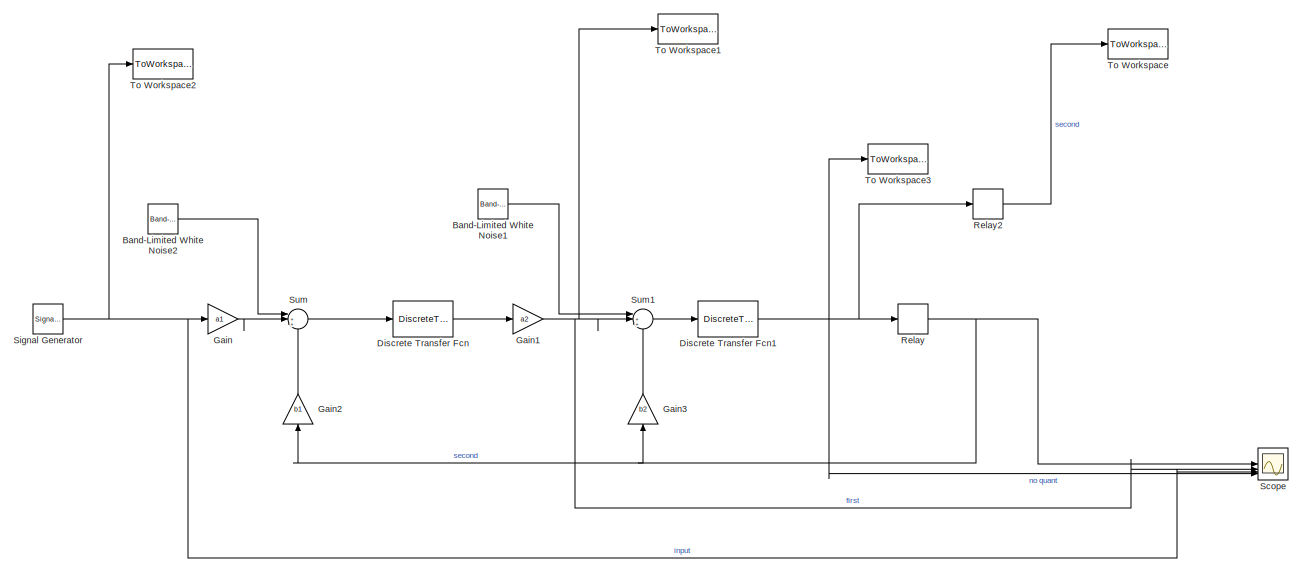
[diagram: root canvas - part 1/2, top center region]
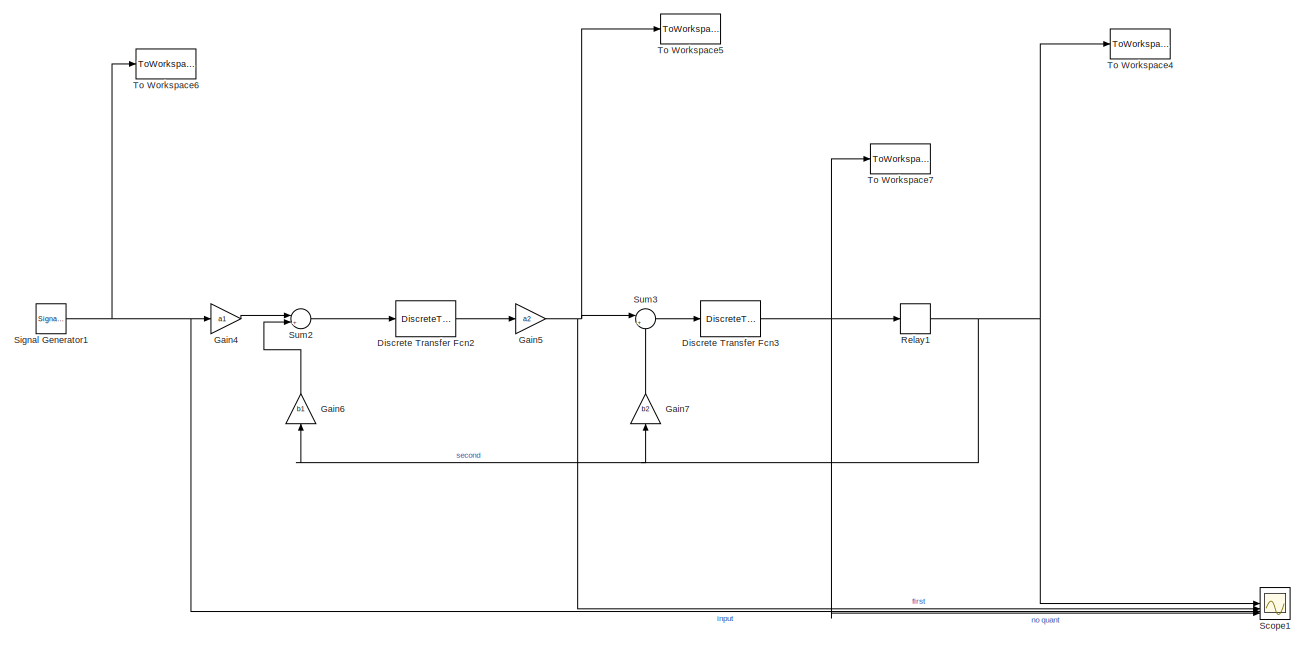
[diagram: root canvas - part 2/2, bottom center region]
MODEL slx_66622a0cb6f7
KIND model
CONFIG AbsTol = auto
CONFIG EnableMultiTasking = off
CONFIG FixedStep = 1/Fs
CONFIG MaxStep = 1/Fs
CONFIG MinStep = auto
CONFIG RelTol = 1e-3
CONFIG SampleTimeConstraint = Unconstrained
CONFIG SolverName = FixedStepAuto
CONFIG StartTime = 0.0
CONFIG StopTime = 1
BLOCK [Reference] Band-Limited White Noise1  REF=simulink/Sources/Band-Limited
White Noise
  SourceBlock = simulink/Sources/Band-Limited\nWhite Noise
  SourceType = Band-Limited White Noise.
BLOCK [Reference] Band-Limited White Noise2  REF=simulink/Sources/Band-Limited
White Noise
  SourceBlock = simulink/Sources/Band-Limited\nWhite Noise
  SourceType = Band-Limited White Noise.
BLOCK [DiscreteTransferFcn] Discrete Transfer Fcn
  Denominator = [1 -1]
  InputPortMap = u0
  Numerator = [1 0]
BLOCK [DiscreteTransferFcn] Discrete Transfer Fcn1
  Denominator = [1 -1]
  InputPortMap = u0
BLOCK [DiscreteTransferFcn] Discrete Transfer Fcn2
  Denominator = [1 -1]
  InputPortMap = u0
  Numerator = [1 0]
BLOCK [DiscreteTransferFcn] Discrete Transfer Fcn3
  Denominator = [1 -1]
  InputPortMap = u0
BLOCK [Gain] Gain
  Gain = a1
BLOCK [Gain] Gain1
  Gain = a2
BLOCK [Gain] Gain2
  Gain = b1
  NameLocation = right
BLOCK [Gain] Gain3
  Gain = b2
  NameLocation = right
BLOCK [Gain] Gain4
  Gain = a1
BLOCK [Gain] Gain5
  Gain = a2
BLOCK [Gain] Gain6
  Gain = b1
  NameLocation = right
BLOCK [Gain] Gain7
  Gain = b2
  NameLocation = right
BLOCK [Relay] Relay
  OffOutputValue = -1
  OffSwitchValue = 0
  OnSwitchValue = 0
BLOCK [Relay] Relay1
  OffOutputValue = -1
  OffSwitchValue = 0
  OnSwitchValue = 0
BLOCK [Relay] Relay2
  OffOutputValue = -1
  OffSwitchValue = 0
  OnSwitchValue = 0
BLOCK [Scope] Scope
  Floating = off
  NumInputPorts = 4
  ScopeSpecificationString = Simulink.scopes.TimeScopeBlockCfg('CurrentConfiguration', extmgr.ConfigurationSet(extmgr.Configuration('Core','General UI',true),extmgr.Configuration('Core','Source UI',true),extmgr.Configuration('Sources','WiredSimulink',true),extmgr.Configuration('Visuals','Time Domain',true,'SerializedDisplays',{struct('MinYLimReal','-1.25','MaxYLimReal','1.25','YLabelReal','','MinYLimMag','0.00000','MaxYLimMag...<+3391ch>
BLOCK [Scope] Scope1
  Floating = off
  NumInputPorts = 4
  ScopeSpecificationString = Simulink.scopes.TimeScopeBlockCfg('CurrentConfiguration', extmgr.ConfigurationSet(extmgr.Configuration('Core','General UI',true),extmgr.Configuration('Core','Source UI',true),extmgr.Configuration('Sources','WiredSimulink',true,'DataLoggingVariableName','ScopeData1'),extmgr.Configuration('Visuals','Time Domain',true,'SerializedDisplays',{struct('MinYLimReal','-1.25','MaxYLimReal','1.25','YLabelReal...<+3430ch>
BLOCK [SignalGenerator] Signal Generator
  Amplitude = AAA
  Frequency = f
BLOCK [SignalGenerator] Signal Generator1
  Amplitude = AAA
  Frequency = f
BLOCK [Sum] Sum
  Inputs = |++-
BLOCK [Sum] Sum1
  Inputs = |++-
BLOCK [Sum] Sum2
  Inputs = |+-
BLOCK [Sum] Sum3
  Inputs = |+-
BLOCK [ToWorkspace] To Workspace
  FixptAsFi = on
  MaxDataPoints = inf
  SampleTime = -1
  SaveFormat = Timeseries
  VariableName = second
BLOCK [ToWorkspace] To Workspace1
  FixptAsFi = on
  MaxDataPoints = inf
  SampleTime = -1
  SaveFormat = Timeseries
  VariableName = first
BLOCK [ToWorkspace] To Workspace2
  FixptAsFi = on
  MaxDataPoints = inf
  SampleTime = -1
  SaveFormat = Timeseries
  VariableName = source
BLOCK [ToWorkspace] To Workspace3
  FixptAsFi = on
  MaxDataPoints = inf
  SampleTime = -1
  SaveFormat = Timeseries
  VariableName = out_sec
BLOCK [ToWorkspace] To Workspace4
  FixptAsFi = on
  MaxDataPoints = inf
  SampleTime = -1
  SaveFormat = Timeseries
  VariableName = second1
BLOCK [ToWorkspace] To Workspace5
  FixptAsFi = on
  MaxDataPoints = inf
  SampleTime = -1
  SaveFormat = Timeseries
  VariableName = first1
BLOCK [ToWorkspace] To Workspace6
  FixptAsFi = on
  MaxDataPoints = inf
  SampleTime = -1
  SaveFormat = Timeseries
  VariableName = source1
BLOCK [ToWorkspace] To Workspace7
  FixptAsFi = on
  MaxDataPoints = inf
  SampleTime = -1
  SaveFormat = Timeseries
  VariableName = out_sec1
LINE Band-Limited White Noise1:1 -> Sum1:1
LINE Band-Limited White Noise2:1 -> Sum:1
NET Discrete Transfer Fcn1:1 -> Relay2:1, Relay:1, Scope:4, To Workspace3:1
LINE Discrete Transfer Fcn2:1 -> Gain5:1
NET Discrete Transfer Fcn3:1 -> Relay1:1, Scope1:4, To Workspace7:1
LINE Discrete Transfer Fcn:1 -> Gain1:1
NET Gain1:1 -> Scope:2, Sum1:2, To Workspace1:1
LINE Gain2:1 -> Sum:3
LINE Gain3:1 -> Sum1:3
LINE Gain4:1 -> Sum2:1
NET Gain5:1 -> Scope1:2, Sum3:1, To Workspace5:1
LINE Gain6:1 -> Sum2:2
LINE Gain7:1 -> Sum3:2
LINE Gain:1 -> Sum:2
NET Relay1:1 -> Gain6:1, Gain7:1, Scope1:1, To Workspace4:1
LINE Relay2:1 -> To Workspace:1
NET Relay:1 -> Gain2:1, Gain3:1, Scope:1
NET Signal Generator1:1 -> Gain4:1, Scope1:3, To Workspace6:1
NET Signal Generator:1 -> Gain:1, Scope:3, To Workspace2:1
LINE Sum1:1 -> Discrete Transfer Fcn1:1
LINE Sum2:1 -> Discrete Transfer Fcn2:1
LINE Sum3:1 -> Discrete Transfer Fcn3:1
LINE Sum:1 -> Discrete Transfer Fcn:1
note: NET lines group one-source signal fan-out (src -> all destinations, sorted); 1:1 wires keep LINE
